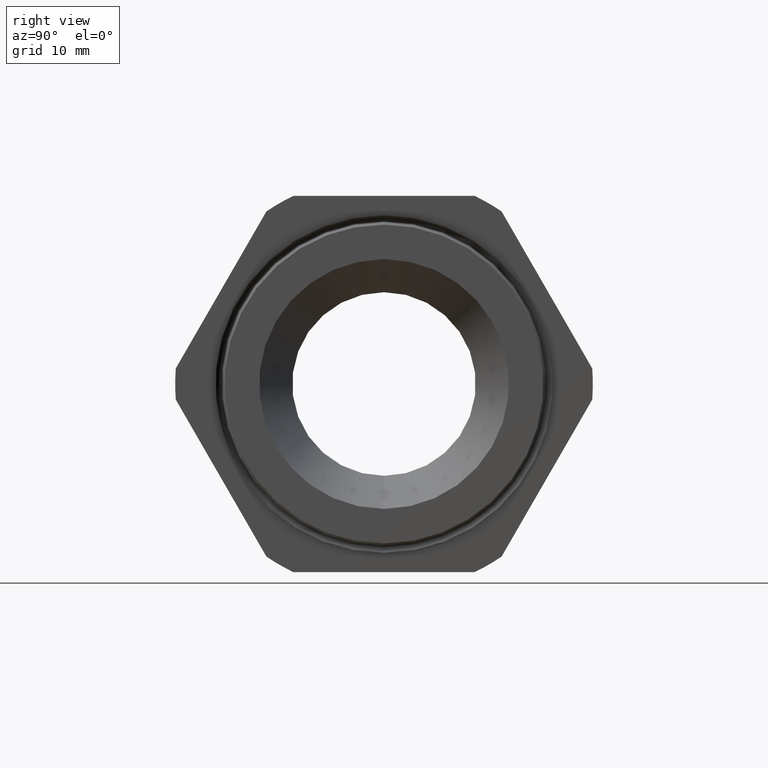
[diagram: clean part render]
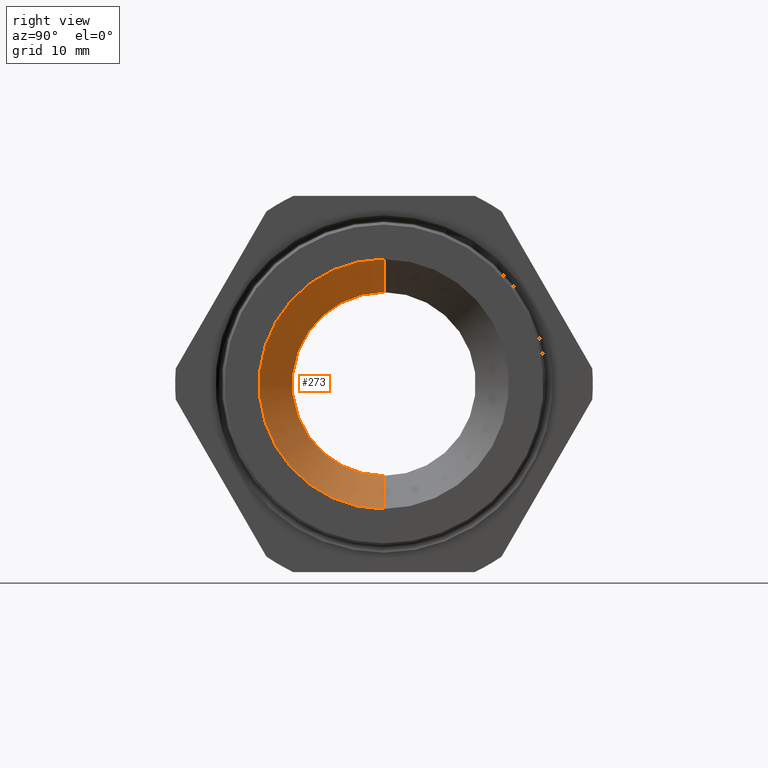
[diagram: same view with one face highlighted and labeled with its STEP entity id]
A machine part, right view. The second image highlights one B-rep face of the part: STEP entity #273.
In plain terms, the highlighted conical surface has half-angle 6.941 deg.
Its self-contained STEP definition (entity closure, byte-faithful):
#252 = ORIENTED_EDGE ( 'NONE', *, *, #253, .T. ) ;
#253 = EDGE_CURVE ( 'NONE', #281, #254, #1170, .T. ) ;
#254 = VERTEX_POINT ( 'NONE', #1165 ) ;
#255 = ORIENTED_EDGE ( 'NONE', *, *, #256, .F. ) ;
#256 = EDGE_CURVE ( 'NONE', #278, #254, #1164, .T. ) ;
#273 = ADVANCED_FACE ( 'NONE', ( #1190 ), #1188, .F. ) ;
#274 = EDGE_LOOP ( 'NONE', ( #275, #279, #252, #255 ) ) ;
#275 = ORIENTED_EDGE ( 'NONE', *, *, #276, .F. ) ;
#276 = EDGE_CURVE ( 'NONE', #277, #278, #1183, .T. ) ;
#277 = VERTEX_POINT ( 'NONE', #1179 ) ;
#278 = VERTEX_POINT ( 'NONE', #1178 ) ;
#279 = ORIENTED_EDGE ( 'NONE', *, *, #280, .T. ) ;
#280 = EDGE_CURVE ( 'NONE', #277, #281, #1177, .T. ) ;
#281 = VERTEX_POINT ( 'NONE', #1173 ) ;
#1161 = DIRECTION ( 'NONE',  ( 0.9926718748852994000, 0.0000000000000000000, -0.1208410063335478700 ) ) ;
#1162 = VECTOR ( 'NONE', #1161, 39.37007874015748100 ) ;
#1163 = CARTESIAN_POINT ( 'NONE',  ( -1.109449999999999800, 0.0000000000000000000, -0.5100000000000000100 ) ) ;
#1164 = LINE ( 'NONE', #1163, #1162 ) ;
#1165 = CARTESIAN_POINT ( 'NONE',  ( 0.4000000000000000800, 0.0000000000000000000, -0.6937500000000000900 ) ) ;
#1166 = DIRECTION ( 'NONE',  ( 0.0000000000000000000, 0.0000000000000000000, -1.000000000000000000 ) ) ;
#1167 = DIRECTION ( 'NONE',  ( 1.000000000000000000, 0.0000000000000000000, 0.0000000000000000000 ) ) ;
#1168 = CARTESIAN_POINT ( 'NONE',  ( 0.4000000000000000800, 0.0000000000000000000, 0.0000000000000000000 ) ) ;
#1169 = AXIS2_PLACEMENT_3D ( 'NONE', #1168, #1167, #1166 ) ;
#1170 = CIRCLE ( 'NONE', #1169, 0.6937500000000000900 ) ;
#1173 = CARTESIAN_POINT ( 'NONE',  ( 0.4000000000000000800, 8.495987169084764700E-017, 0.6937500000000000900 ) ) ;
#1174 = DIRECTION ( 'NONE',  ( 0.9926718748852994000, 1.479875516121244400E-017, 0.1208410063335478700 ) ) ;
#1175 = VECTOR ( 'NONE', #1174, 39.37007874015748100 ) ;
#1176 = CARTESIAN_POINT ( 'NONE',  ( -1.109449999999999800, 6.245698675651502300E-017, 0.5100000000000000100 ) ) ;
#1177 = LINE ( 'NONE', #1176, #1175 ) ;
#1178 = CARTESIAN_POINT ( 'NONE',  ( -1.109449999999999800, 0.0000000000000000000, -0.5100000000000000100 ) ) ;
#1179 = CARTESIAN_POINT ( 'NONE',  ( -1.109449999999999800, 6.245698675651502300E-017, 0.5100000000000000100 ) ) ;
#1180 = DIRECTION ( 'NONE',  ( 0.0000000000000000000, 0.0000000000000000000, -1.000000000000000000 ) ) ;
#1181 = DIRECTION ( 'NONE',  ( 1.000000000000000000, 0.0000000000000000000, 0.0000000000000000000 ) ) ;
#1182 = AXIS2_PLACEMENT_3D ( 'NONE', #1189, #1181, #1180 ) ;
#1183 = CIRCLE ( 'NONE', #1182, 0.5100000000000000100 ) ;
#1184 = DIRECTION ( 'NONE',  ( 0.0000000000000000000, 0.0000000000000000000, -1.000000000000000000 ) ) ;
#1185 = DIRECTION ( 'NONE',  ( 1.000000000000000000, 0.0000000000000000000, 0.0000000000000000000 ) ) ;
#1186 = CARTESIAN_POINT ( 'NONE',  ( -1.109449999999999800, 0.0000000000000000000, 0.0000000000000000000 ) ) ;
#1187 = AXIS2_PLACEMENT_3D ( 'NONE', #1186, #1185, #1184 ) ;
#1188 = CONICAL_SURFACE ( 'NONE', #1187, 0.5100000000000000100, 0.1211370536420832700 ) ;
#1189 = CARTESIAN_POINT ( 'NONE',  ( -1.109449999999999800, 0.0000000000000000000, 0.0000000000000000000 ) ) ;
#1190 = FACE_OUTER_BOUND ( 'NONE', #274, .T. ) ;